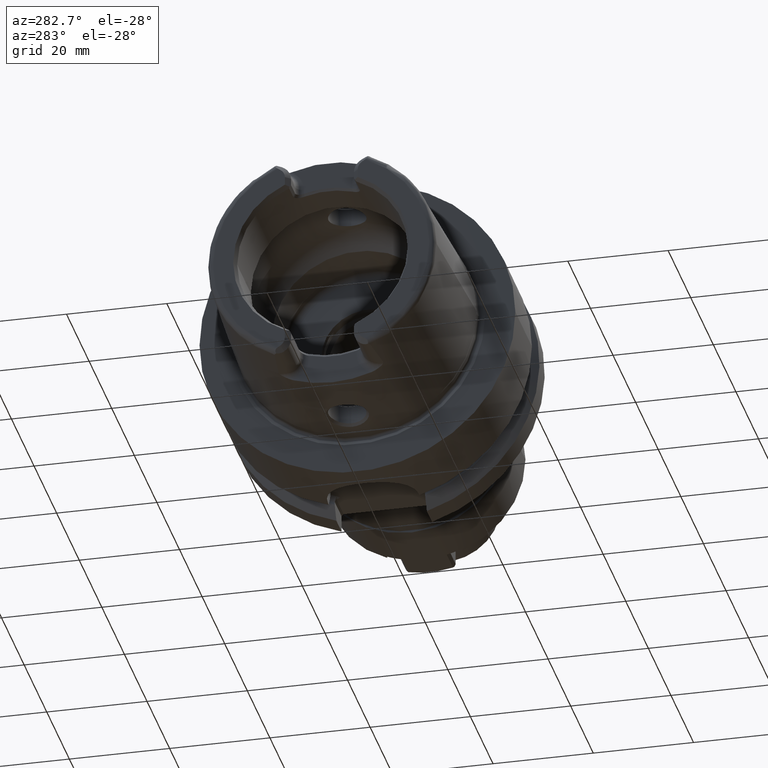
[diagram: clean part render]
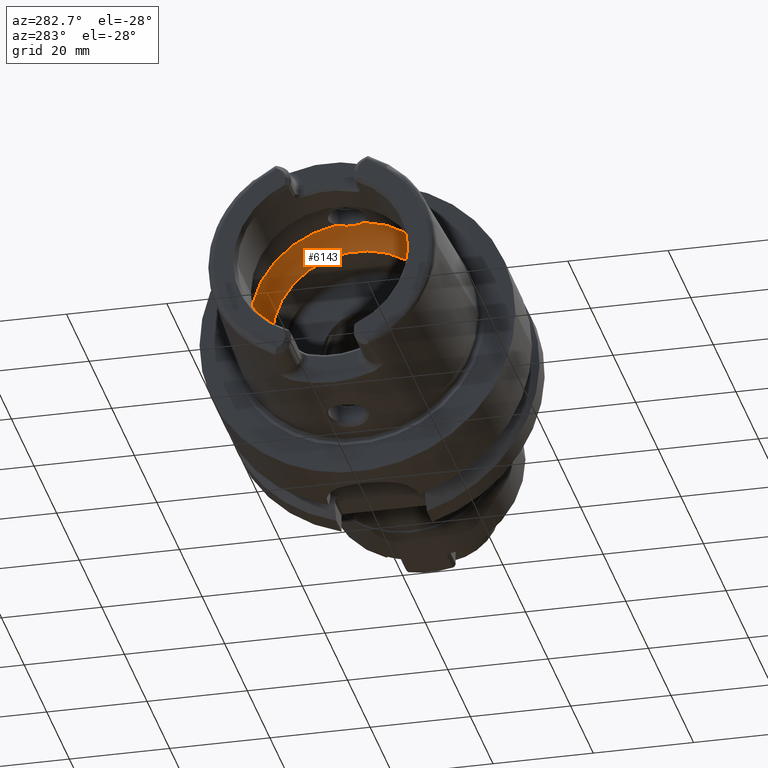
[diagram: same view with one face highlighted and labeled with its STEP entity id]
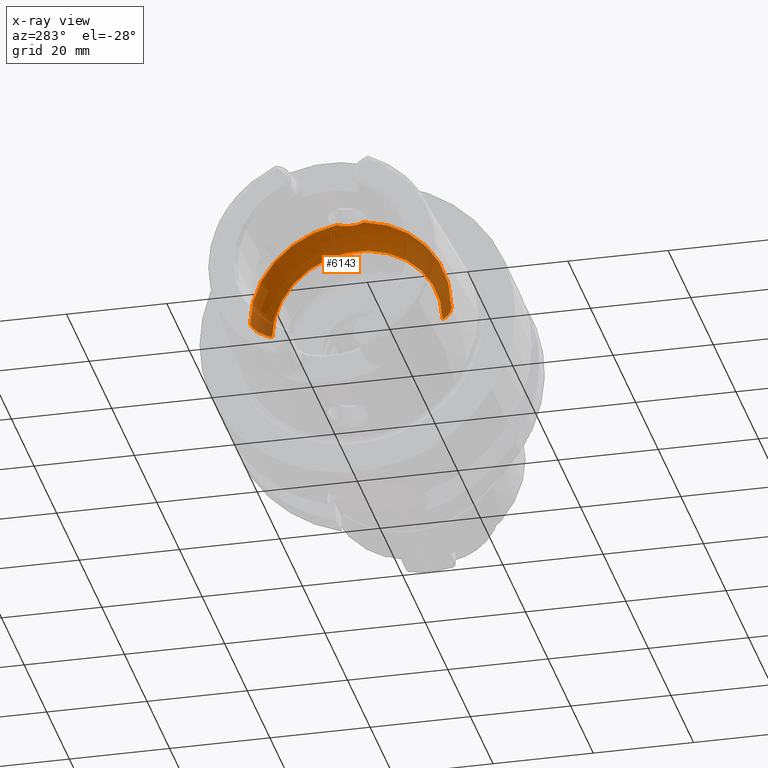
[diagram: x-ray of the same camera — body ghosted, the highlighted face saturated]
A machine part, auxiliary view. The second image highlights one B-rep face of the part: STEP entity #6143.
The next image is the same camera in x-ray: the body ghosted, the highlighted face saturated — about 26% of this face is hidden behind the body in this view.
In plain terms, the highlighted toroidal blend (fillet) surface has major radius 12 mm and minor (blend) radius 8 mm.
Its self-contained STEP definition (entity closure, byte-faithful):
#2444=CARTESIAN_POINT('',(-5.25E0,0.E0,1.992470689575E1));
#2445=CARTESIAN_POINT('',(-5.25E0,1.634249880127E-1,1.992470689575E1));
#2446=CARTESIAN_POINT('',(-5.271317000323E0,4.905125142286E-1,
1.992366860007E1));
#2447=CARTESIAN_POINT('',(-5.367938073203E0,9.753406287590E-1,
1.991846757388E1));
#2448=CARTESIAN_POINT('',(-5.525913254439E0,1.440181253243E0,1.990841194030E1));
#2449=CARTESIAN_POINT('',(-5.745012466850E0,1.883704211740E0,1.989126222791E1));
#2450=CARTESIAN_POINT('',(-6.017092970824E0,2.289932260455E0,1.986481338490E1));
#2451=CARTESIAN_POINT('',(-6.231037578916E0,2.534045566496E0,1.983915065875E1));
#2452=CARTESIAN_POINT('',(-6.344997998398E0,2.648294615690E0,1.982388800484E1));
#2454=CARTESIAN_POINT('',(-6.344997998398E0,-2.648294615690E0,
1.982388800484E1));
#2455=CARTESIAN_POINT('',(-6.231045843136E0,-2.534053851646E0,
1.983914955193E1));
#2456=CARTESIAN_POINT('',(-6.017093742818E0,-2.289943440357E0,
1.986481395775E1));
#2457=CARTESIAN_POINT('',(-5.744901596897E0,-1.883527876206E0,
1.989127237006E1));
#2458=CARTESIAN_POINT('',(-5.525828432433E0,-1.439963272778E0,
1.990841763195E1));
#2459=CARTESIAN_POINT('',(-5.367908372542E0,-9.752317929729E-1,
1.991846926373E1));
#2460=CARTESIAN_POINT('',(-5.271289109403E0,-4.903031116233E-1,
1.992367002777E1));
#2461=CARTESIAN_POINT('',(-5.25E0,-1.633414179458E-1,1.992470689575E1));
#2462=CARTESIAN_POINT('',(-5.25E0,0.E0,1.992470689575E1));
#2464=CARTESIAN_POINT('',(-1.E-1,0.E0,0.E0));
#2465=DIRECTION('',(1.E0,0.E0,0.E0));
#2466=DIRECTION('',(0.E0,1.E0,0.E0));
#2467=AXIS2_PLACEMENT_3D('',#2464,#2465,#2466);
#2609=CARTESIAN_POINT('',(-6.344997998398E0,0.E0,0.E0));
#2610=DIRECTION('',(1.E0,0.E0,0.E0));
#2611=DIRECTION('',(0.E0,1.E0,0.E0));
#2612=AXIS2_PLACEMENT_3D('',#2609,#2610,#2611);
#2614=CARTESIAN_POINT('',(-6.344997998398E0,0.E0,0.E0));
#2615=DIRECTION('',(1.E0,0.E0,0.E0));
#2616=DIRECTION('',(0.E0,-1.324147307845E-1,9.911944002421E-1));
#2617=AXIS2_PLACEMENT_3D('',#2614,#2615,#2616);
#2707=CARTESIAN_POINT('',(-6.344997998398E0,1.2E1,0.E0));
#2708=DIRECTION('',(0.E0,0.E0,1.E0));
#2709=DIRECTION('',(7.806247497998E-1,6.25E-1,0.E0));
#2710=AXIS2_PLACEMENT_3D('',#2707,#2708,#2709);
#2717=CARTESIAN_POINT('',(-6.344997998398E0,-1.2E1,0.E0));
#2718=DIRECTION('',(0.E0,0.E0,-1.E0));
#2719=DIRECTION('',(7.806247497998E-1,-6.25E-1,0.E0));
#2720=AXIS2_PLACEMENT_3D('',#2717,#2718,#2719);
#2970=CARTESIAN_POINT('',(-1.E-1,1.7E1,0.E0));
#2971=VERTEX_POINT('',#2970);
#2972=CARTESIAN_POINT('',(-6.344997998398E0,2.E1,0.E0));
#2973=VERTEX_POINT('',#2972);
#2982=CARTESIAN_POINT('',(-1.E-1,-1.7E1,0.E0));
#2983=VERTEX_POINT('',#2982);
#2984=CARTESIAN_POINT('',(-6.344997998398E0,-2.E1,0.E0));
#2985=VERTEX_POINT('',#2984);
#3153=VERTEX_POINT('',#2444);
#3154=VERTEX_POINT('',#2452);
#3155=VERTEX_POINT('',#2454);
#6123=CARTESIAN_POINT('',(-6.344997998398E0,0.E0,0.E0));
#6124=DIRECTION('',(1.E0,0.E0,0.E0));
#6125=DIRECTION('',(0.E0,-1.E0,0.E0));
#6126=AXIS2_PLACEMENT_3D('',#6123,#6124,#6125);
#6127=TOROIDAL_SURFACE('',#6126,1.2E1,8.E0);
#6129=ORIENTED_EDGE('',*,*,#6128,.F.);
#6131=ORIENTED_EDGE('',*,*,#6130,.F.);
#6133=ORIENTED_EDGE('',*,*,#6132,.T.);
#6135=ORIENTED_EDGE('',*,*,#6134,.F.);
#6136=ORIENTED_EDGE('',*,*,#6116,.F.);
#6138=ORIENTED_EDGE('',*,*,#6137,.T.);
#6140=ORIENTED_EDGE('',*,*,#6139,.T.);
#6141=EDGE_LOOP('',(#6129,#6131,#6133,#6135,#6136,#6138,#6140));
#6142=FACE_OUTER_BOUND('',#6141,.F.);
#6143=ADVANCED_FACE('',(#6142),#6127,.F.);
#2453=B_SPLINE_CURVE_WITH_KNOTS('',3,(#2444,#2445,#2446,#2447,#2448,#2449,#2450,
#2451,#2452),.UNSPECIFIED.,.F.,.F.,(4,1,1,1,1,1,4),(0.E0,1.666666666667E-1,
3.333333333333E-1,5.E-1,6.666666666667E-1,8.333333333333E-1,1.E0),
.UNSPECIFIED.);
#2463=B_SPLINE_CURVE_WITH_KNOTS('',3,(#2454,#2455,#2456,#2457,#2458,#2459,#2460,
#2461,#2462),.UNSPECIFIED.,.F.,.F.,(4,1,1,1,1,1,4),(0.E0,1.666666666667E-1,
3.333333333333E-1,5.E-1,6.666666666667E-1,8.333333333333E-1,1.E0),
.UNSPECIFIED.);
#2468=CIRCLE('',#2467,1.7E1);
#2613=CIRCLE('',#2612,2.E1);
#2618=CIRCLE('',#2617,2.E1);
#2711=CIRCLE('',#2710,8.E0);
#2721=CIRCLE('',#2720,8.E0);
#6116=EDGE_CURVE('',#2971,#2983,#2468,.T.);
#6128=EDGE_CURVE('',#3153,#3154,#2453,.T.);
#6130=EDGE_CURVE('',#3155,#3153,#2463,.T.);
#6132=EDGE_CURVE('',#3155,#2985,#2618,.T.);
#6134=EDGE_CURVE('',#2983,#2985,#2721,.T.);
#6137=EDGE_CURVE('',#2971,#2973,#2711,.T.);
#6139=EDGE_CURVE('',#2973,#3154,#2613,.T.);